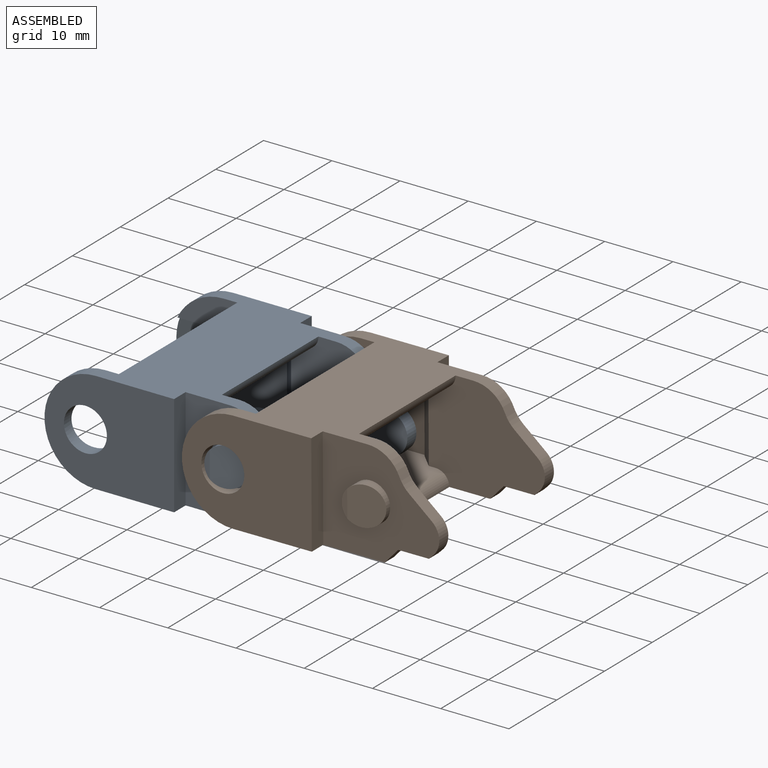
[diagram: assembled view]
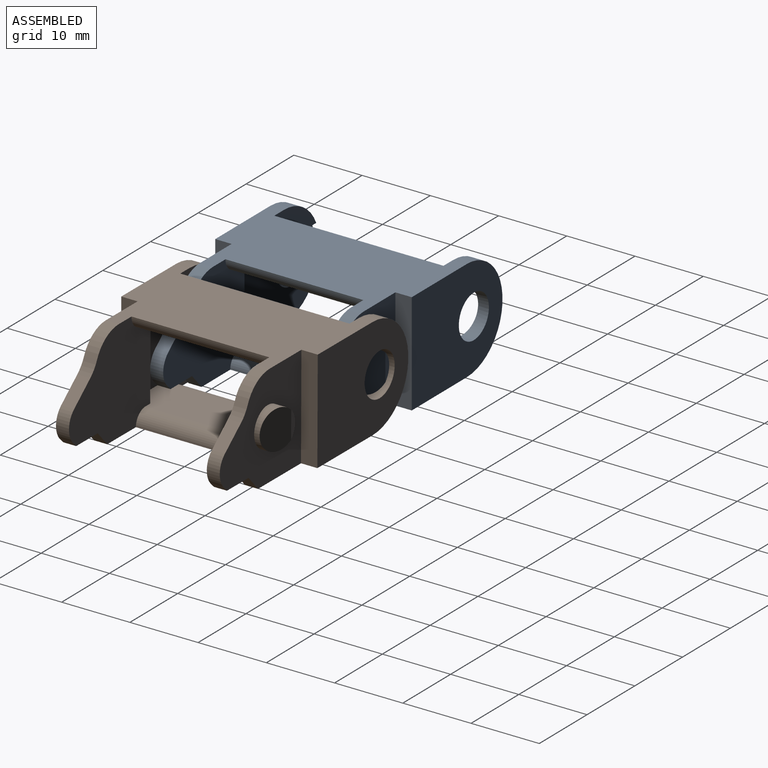
[diagram: assembled view, second angle]
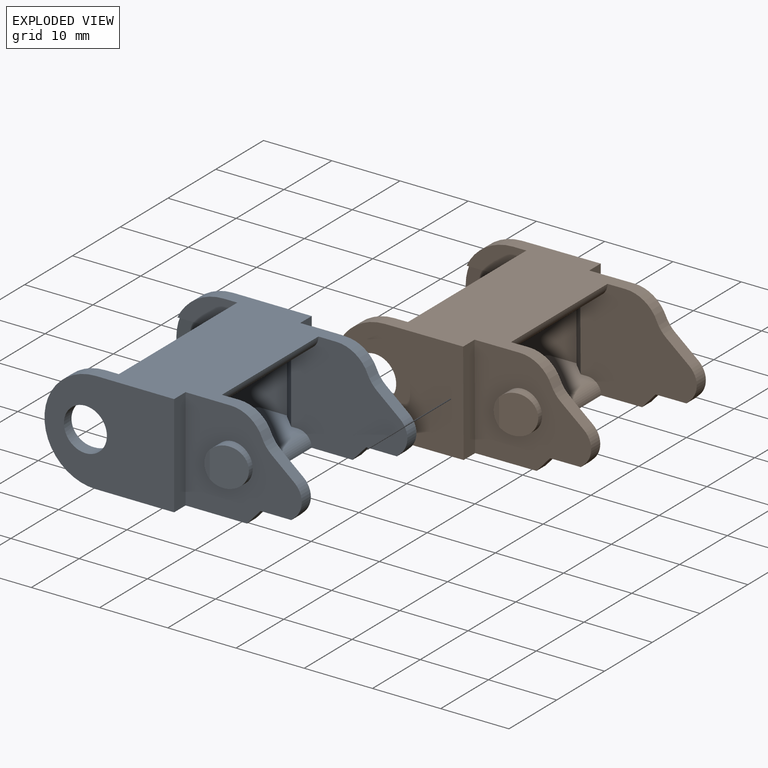
[diagram: exploded view]
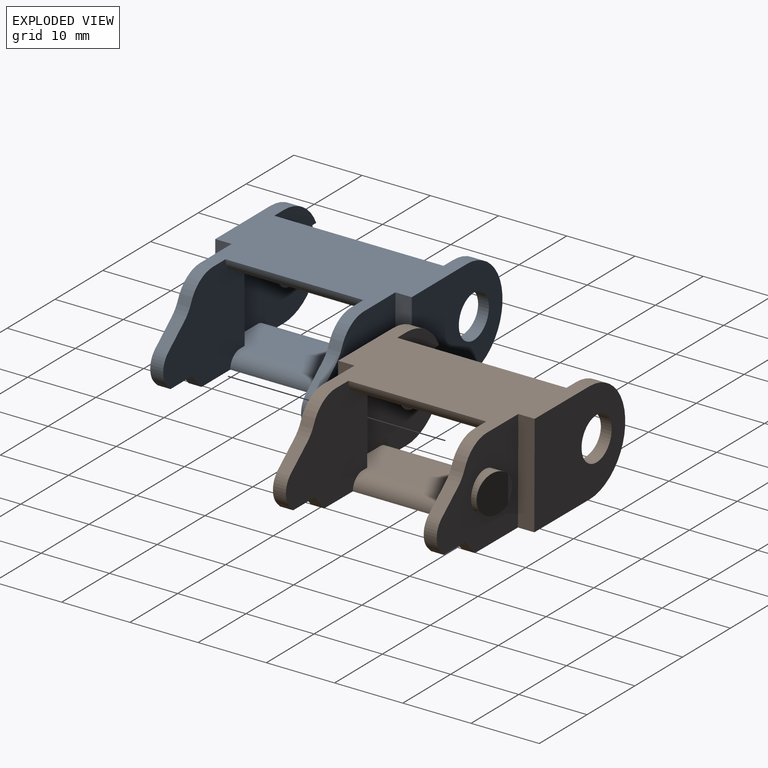
[diagram: exploded view, second angle]
ASSEMBLY  parts=2 mates=2
PART A: 52 faces, bbox 36.1x28.8x15 mm
  f0: plane 16.28x15mm, normal (0,-1,0), area 153.1mm2, adj f3,f8,f9,f15,f17,f31,f32,f37
  f1: cylinder r=7.5mm len=15mm, axis (0,1,0), area 42mm2, adj f9,f11,f15,f16,f45,f46,f47
  f2: cylinder r=3.15mm len=6.3mm, axis (0,1,0), area 36.9mm2, adj f11,f16,f47
  f3: cylinder r=7.5mm len=15mm, axis (0,-1,0), area 42mm2, adj f0,f9,f12,f15,f42,f43,f44
  f4: cylinder r=2.85mm len=5.7mm, axis (0,1,0), area 26.3mm2, adj f5,f13,f41
  f5: plane 3.96x0.8mm, normal (0,-1,0), area 2.2mm2, adj f4,f41
  f6: plane 3.96x0.8mm, normal (0,1,0), area 2.2mm2, adj f33,f40
  f7: plane 15x2.4mm, normal (1,0,0), area 36mm2, adj f9,f12,f14,f15
  f8: plane 24.8x7mm, normal (0,0,1), area 163.8mm2, adj f0,f16,f23,f29,f30,f31,f34,f35
  f9: plane 28.8x20.5mm, normal (0,0,-1), area 339.2mm2, adj f0,f1,f3,f7,f10,f11,f12,f13
  f10: plane 15x2.4mm, normal (1,0,0), area 36mm2, adj f9,f11,f13,f15
  f11: plane 19x15mm, normal (0,-1,0), area 229.7mm2, adj f1,f2,f9,f10,f15
  f12: plane 19x15mm, normal (0,1,0), area 229.7mm2, adj f3,f7,f9,f15,f17
  f13: plane 17.03x15mm, normal (0,-1,0), area 173.1mm2, adj f4,f9,f10,f15,f18,f19,f20,f21
  f14: plane 17.03x15mm, normal (0,1,0), area 173.1mm2, adj f7,f9,f15,f24,f25,f26,f27,f28
  f15: plane 28.8x18.1mm, normal (0,0,1), area 387.5mm2, adj f0,f1,f3,f7,f10,f11,f12,f13
  f16: plane 16.28x15mm, normal (0,1,0), area 153.1mm2, adj f1,f2,f8,f9,f15,f30,f32,f37
  f17: cylinder r=3.15mm len=6.3mm, axis (0,-1,0), area 36.9mm2, adj f0,f12,f42
  f18: plane 2.2x2mm, normal (0.74,0,-0.67), area 5.6mm2, adj f9,f13,f19,f23
  f19: plane 4.5x1.9mm, normal (0,0,-1), area 8.6mm2, adj f13,f18,f20,f23
  f20: plane 1.9x0.63mm, normal (0.7,0,-0.72), area 1.7mm2, adj f13,f19,f23,f49
  f21: plane 3.37x2.83mm, normal (0.64,0,0.77), area 8.4mm2, adj f13,f23,f49,f51
  f22: cylinder r=5mm len=4.6mm, axis (0,1,0), area 11.1mm2, adj f13,f15,f23,f51
  f23: plane 17.03x15mm, normal (0,1,0), area 186.4mm2, adj f8,f9,f15,f18,f19,f20,f21,f22
  f24: plane 2.2x2mm, normal (0.74,0,-0.67), area 5.6mm2, adj f9,f14,f25,f29
  f25: plane 4.5x1.9mm, normal (0,0,-1), area 8.6mm2, adj f14,f24,f26,f29
  f26: plane 1.9x0.63mm, normal (0.7,0,-0.72), area 1.7mm2, adj f14,f25,f29,f48
  f27: plane 3.37x2.83mm, normal (0.64,0,0.77), area 8.4mm2, adj f14,f29,f48,f50
  f28: cylinder r=5mm len=4.6mm, axis (0,-1,0), area 11.1mm2, adj f14,f15,f29,f50
  f29: plane 17.03x15mm, normal (0,-1,0), area 186.4mm2, adj f8,f9,f15,f24,f25,f26,f27,f28
  f30: plane 11x0.3mm, normal (-1,0,0), area 3.3mm2, adj f8,f16,f32,f34
  f31: plane 11x0.3mm, normal (-1,0,0), area 3.3mm2, adj f0,f8,f32,f35
  f32: plane 24.8x9.5mm, normal (0,0,-1), area 221.2mm2, adj f0,f16,f23,f29,f30,f31,f34,f35
  f33: cylinder r=2.85mm len=5.7mm, axis (0,-1,0), area 26.2mm2, adj f6,f14,f40
  f34: plane 11x2mm, normal (-0.71,0.71,0), area 31.1mm2, adj f8,f23,f30,f32
  f35: plane 11x2mm, normal (-0.71,-0.71,0), area 31.1mm2, adj f8,f29,f31,f32
  f36: cylinder r=2mm len=20.2mm, axis (0,-1,0), area 63.5mm2, adj f15,f23,f29,f32
  f37: cylinder r=2mm len=24.8mm, axis (0,1,0), area 77.9mm2, adj f0,f15,f16,f32
  f38: cylinder r=2mm len=20.2mm, axis (0,1,0), area 63.5mm2, adj f8,f9,f23,f29
  f39: cylinder r=2mm len=24.8mm, axis (0,-1,0), area 77.9mm2, adj f0,f8,f9,f16
  f40: plane 5.74x4.94mm, normal (0.24,0.97,0), area 24mm2, adj f6,f33
  f41: plane 5.7x4.9mm, normal (0.24,-0.97,0), area 24mm2, adj f4,f5
  f42: plane 6.4x6mm, normal (-0.13,-0.99,0), area 21.5mm2, adj f0,f3,f17,f43,f44
  f43: plane 5.28x0.7mm, normal (0,0,1), area 1.9mm2, adj f0,f3,f42
  f44: plane 5.28x0.7mm, normal (0,0,-1), area 1.9mm2, adj f0,f3,f42
  f45: plane 5.28x0.7mm, normal (0,0,1), area 1.9mm2, adj f1,f16,f47
  f46: plane 5.28x0.7mm, normal (0,0,-1), area 1.9mm2, adj f1,f16,f47
  f47: plane 6.4x6mm, normal (-0.13,0.99,0), area 21.5mm2, adj f1,f2,f16,f45,f46
  f48: cylinder r=3mm len=4.45mm, axis (0,-1,0), area 9.5mm2, adj f14,f26,f27,f29
  f49: cylinder r=3mm len=4.45mm, axis (0,1,0), area 9.5mm2, adj f13,f20,f21,f23
  f50: cylinder r=5mm len=1.9mm, axis (0,-1,0), area 4.5mm2, adj f14,f27,f28,f29
  f51: cylinder r=5mm len=1.9mm, axis (0,1,0), area 4.5mm2, adj f13,f21,f22,f23
PART B: same geometry as A
PLACE A at identity fixed
PLACE B rot(axis=(0,-1,0),0.3deg) t=(20,0.2,0)mm
MATE cylindrical B.f2 <-> A.f4  axis (0,-1,0) through (20,12.6,0)mm
MATE revolute B.f2 <-> A.f4  axis (0,-1,0) through (20,-14.2,0)mm
